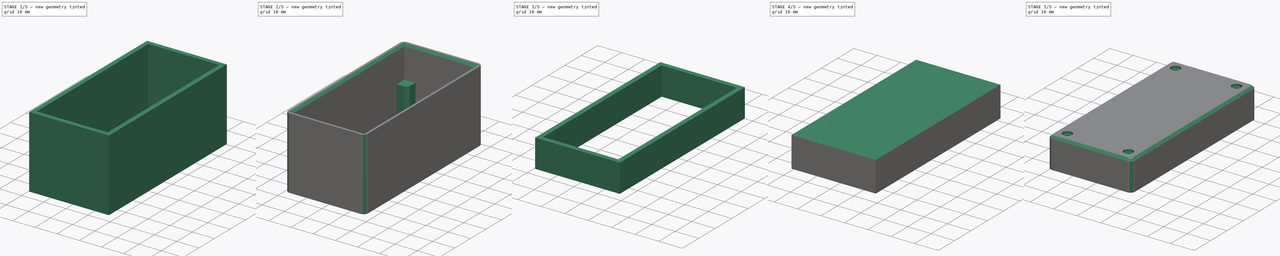
[diagram: build sequence overview — one tinted view per stage of 5, left to right]
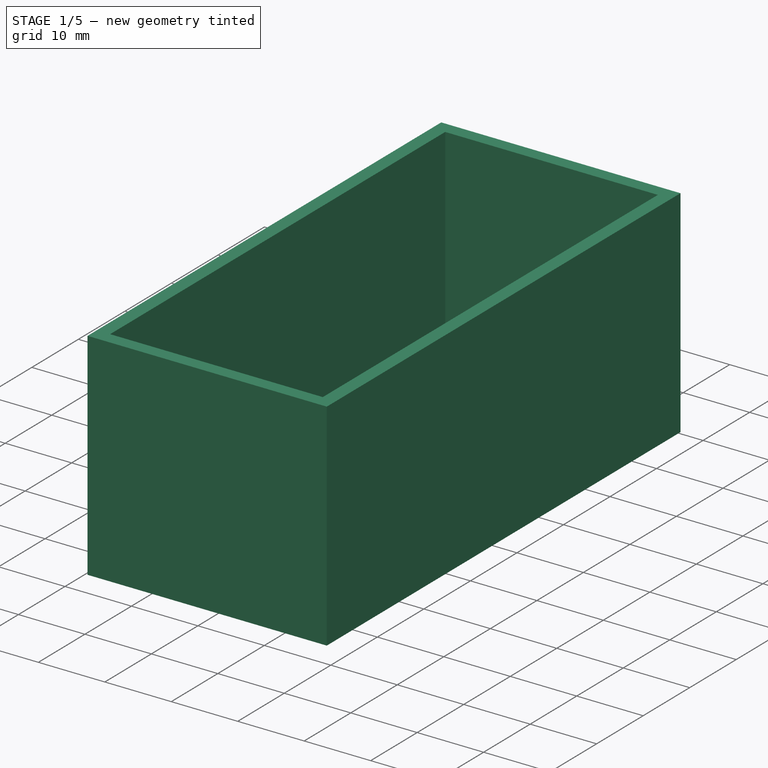
[diagram: stage 1 of 5 — iso view after this stage's code; geometry added in this stage tinted green]
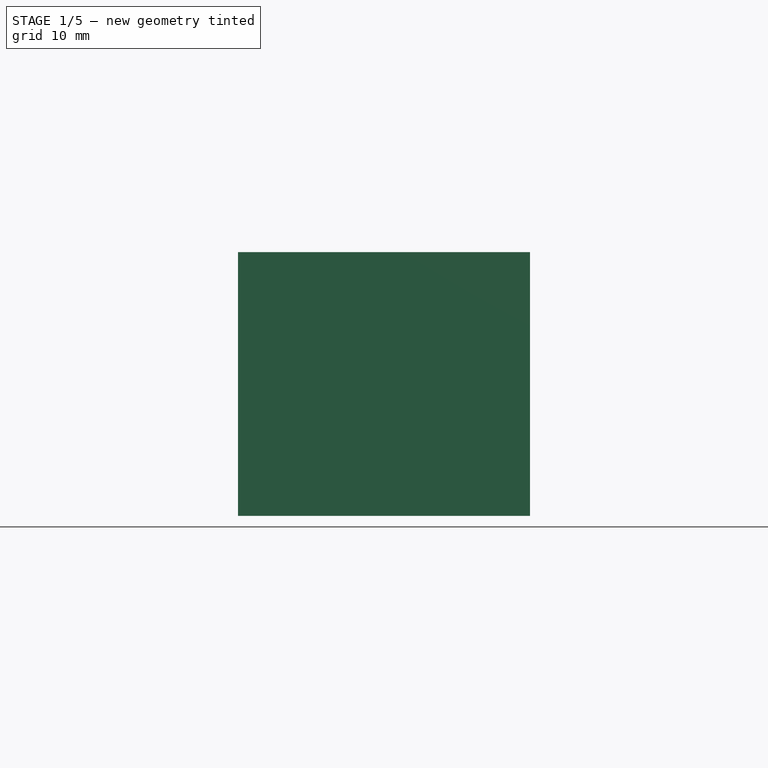
[diagram: stage 1 of 5 — front view after this stage's code; geometry added in this stage tinted green]
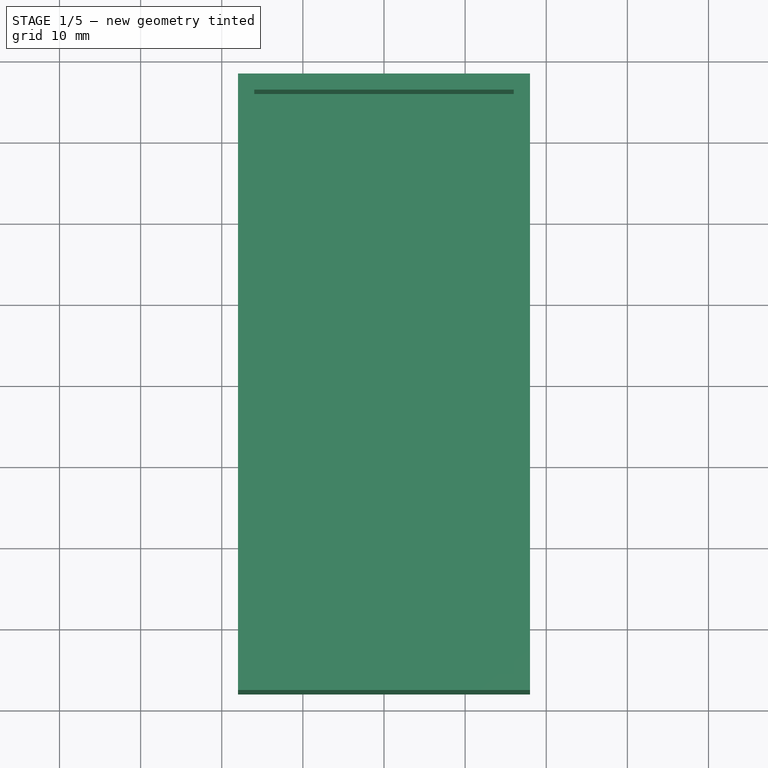
[diagram: stage 1 of 5 — top view after this stage's code; geometry added in this stage tinted green]
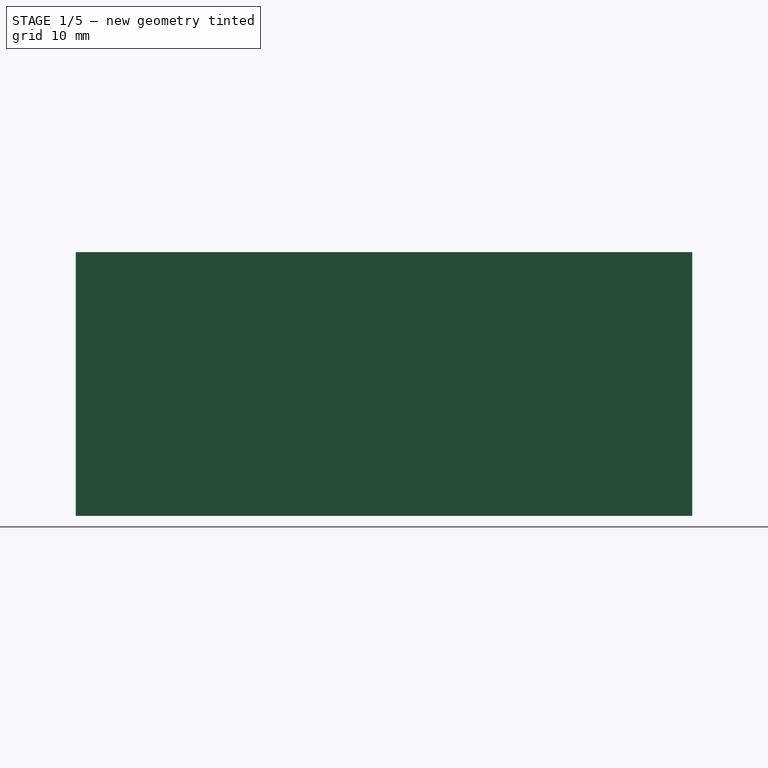
[diagram: stage 1 of 5 — right view after this stage's code; geometry added in this stage tinted green]
FCSTD DOCUMENT  (FreeCAD 1.1R44874 (Git))
Label: esphome_sauna_temp_enclosure
License: All rights reserved
LicenseURL: https://en.wikipedia.org/wiki/All_rights_reserved
objects: Sketcher::SketchObject×7, PartDesign::Pad×4, PartDesign::Chamfer×4, PartDesign::Pocket×3, PartDesign::SubShapeBinder×3, App::Point×2, PartDesign::Fillet×2, PartDesign::Hole×2, PartDesign::Body×2, Spreadsheet::Sheet×1, PartDesign::Mirrored×1
note: 66 computed .brp shape members not serialized (recipe doc carries the construction recipe); baked Part::Feature solids carry a one-line shape summary decoded from their .brp

FEATURE [App::Point] Origin001
  Role = Origin
FEATURE [Sketcher::SketchObject] Sketch  label="PBC_Sketch"
  ArcFitTolerance = 1e-06
  AttachmentSupport = -> [Origin]
  ExternalTypes = [0]
  FullyConstrained = true
  MakeInternals = false
  MapMode = 5
  _ExternalGeoVersion = 1
  expr: Constraints[10] = <<config>>.pcb_length
  expr: Constraints[9] = <<config>>.pcb_width
  sketch-geometry (9):
    g0: LineSegment StartX=-15 StartY=-35 StartZ=0 EndX=15 EndY=-35 EndZ=0
    g1: LineSegment StartX=15 StartY=-35 StartZ=0 EndX=15 EndY=35 EndZ=0
    g2: LineSegment StartX=15 StartY=35 StartZ=0 EndX=-15 EndY=35 EndZ=0
    g3: LineSegment StartX=-15 StartY=35 StartZ=0 EndX=-15 EndY=-35 EndZ=0
    g4: GeomPoint [constr] X=0 Y=0 Z=0
    g5: Circle CenterX=-13 CenterY=33 CenterZ=0 NormalX=0 NormalY=0 NormalZ=1 AngleXU=0 Radius=1.25
    g6: Circle CenterX=13 CenterY=33 CenterZ=0 NormalX=0 NormalY=0 NormalZ=1 AngleXU=0 Radius=1.25
    g7: Circle CenterX=13 CenterY=-33 CenterZ=0 NormalX=0 NormalY=0 NormalZ=1 AngleXU=0 Radius=1.25
    g8: Circle CenterX=-13 CenterY=-33 CenterZ=0 NormalX=0 NormalY=0 NormalZ=1 AngleXU=0 Radius=1.25
  constraints (21):
    c: Coincident(g0,g1)
    c: Coincident(g1,g2)
    c: Coincident(g2,g3)
    c: Coincident(g3,g0)
    c: Horizontal(g0)
    c: Horizontal(g2)
    c: Vertical(g1)
    c: Vertical(g3)
    c: Symmetric(g2,g0,g4)
    c: Distance(g1,g3) = 30
    c: Distance(g0,g2) = 70
    c: Coincident(g4,g-1)
    c: Diameter(g5) = 2.5
    c: Equal(g5,g6)
    c: Equal(g5,g8)
    c: Equal(g5,g7)
    c: Symmetric(g5,g6,g-2)
    c: Symmetric(g5,g8,g-1)
    c: Symmetric(g7,g8,g-2)
    c: DistanceX(g5,g6) = 26
    c: DistanceY(g8,g5) = 66
FEATURE [Sketcher::SketchObject] Sketch001
  ArcFitTolerance = 1e-06
  AttachmentSupport = -> [Origin]
  ExternalTypes = [0]
  FullyConstrained = true
  MakeInternals = false
  MapMode = 5
  _ExternalGeoVersion = 1
  expr: Constraints[10] = <<config>>.pcb_length + 2 * (<<config>>.wall_thickness + <<config>>.wall_clearance)
  expr: Constraints[11] = <<config>>.pcb_width + 2 * (<<config>>.wall_thickness + <<config>>.wall_clearance)
  sketch-geometry (5):
    g0: LineSegment StartX=-18 StartY=38 StartZ=0 EndX=-18 EndY=-38 EndZ=0
    g1: LineSegment StartX=-18 StartY=-38 StartZ=0 EndX=18 EndY=-38 EndZ=0
    g2: LineSegment StartX=18 StartY=-38 StartZ=0 EndX=18 EndY=38 EndZ=0
    g3: LineSegment StartX=18 StartY=38 StartZ=0 EndX=-18 EndY=38 EndZ=0
    g4: GeomPoint [constr] X=0 Y=0 Z=0
  constraints (12):
    c: Coincident(g0,g1)
    c: Coincident(g1,g2)
    c: Coincident(g2,g3)
    c: Coincident(g3,g0)
    c: Vertical(g0)
    c: Vertical(g2)
    c: Horizontal(g1)
    c: Horizontal(g3)
    c: Symmetric(g2,g0,g4)
    c: Coincident(g4,g-1)
    c: DistanceY(g0,g0) = 76
    c: DistanceX(g1,g1) = 36
FEATURE [Spreadsheet::Sheet] Spreadsheet  label="config"
  cells = A1='wall; B1(wall_thickness)==2 mm; A2='pcb wall clear; B2(wall_clearance)==1 mm; A4='pcb height; B4(pcb_height)==1.5 mm; A5='esp height; B5(esp_height)==15 mm; A6='power supply height; B6(ps_height)==22 mm; A8='pcd width; B8(pcb_width)==30 mm; A9='pcb length; B9(pcb_length)==70 mm; A11='connector height; B11(connector_height)==12 mm; A13='overlap; B13(overlap)==1 mm
FEATURE [PartDesign::Pad] Pad
  Direction = (0,0,1)
  Length = 18
  Length2 = 14.5
  Profile = -> Sketch001
  ReferenceAxis = -> Sketch001 [N_Axis]
  Refine = true
  Reversed = true
  SideType = 1
  Suppressed = false
  Type = 0
  Type2 = 0
  expr: Length = <<config>>.esp_height + <<config>>.wall_clearance + <<config>>.wall_thickness
  expr: Length2 = <<config>>.pcb_height + <<config>>.connector_height + <<config>>.overlap
FEATURE [Sketcher::SketchObject] Sketch002
  ArcFitTolerance = 1e-06
  AttachmentSupport = -> [Origin]
  ExternalTypes = [0]
  FullyConstrained = true
  MakeInternals = false
  MapMode = 5
  _ExternalGeoVersion = 1
  expr: Constraints[10] = <<config>>.pcb_length + 2 * <<config>>.wall_clearance
  expr: Constraints[11] = <<config>>.pcb_width + 2 * <<config>>.wall_clearance
  sketch-geometry (5):
    g0: LineSegment StartX=-16 StartY=36 StartZ=0 EndX=-16 EndY=-36 EndZ=0
    g1: LineSegment StartX=-16 StartY=-36 StartZ=0 EndX=16 EndY=-36 EndZ=0
    g2: LineSegment StartX=16 StartY=-36 StartZ=0 EndX=16 EndY=36 EndZ=0
    g3: LineSegment StartX=16 StartY=36 StartZ=0 EndX=-16 EndY=36 EndZ=0
    g4: GeomPoint [constr] X=0 Y=0 Z=0
  constraints (12):
    c: Coincident(g0,g1)
    c: Coincident(g1,g2)
    c: Coincident(g2,g3)
    c: Coincident(g3,g0)
    c: Vertical(g0)
    c: Vertical(g2)
    c: Horizontal(g1)
    c: Horizontal(g3)
    c: Symmetric(g2,g0,g4)
    c: Coincident(g4,g-1)
    c: DistanceY(g0,g0) = 72
    c: DistanceX(g1,g1) = 32
FEATURE [PartDesign::Pocket] Pocket
  BaseFeature = -> Pad
  Direction = (0,0,-1)
  Length = 16
  Length2 = 22
  Profile = -> Sketch002
  ReferenceAxis = -> Sketch002 [N_Axis]
  Refine = true
  SideType = 1
  Suppressed = false
  Type = 0
  Type2 = 0
  expr: Length = <<config>>.esp_height + <<config>>.wall_clearance
  expr: Length2 = <<config>>.ps_height
FEATURE [Sketcher::SketchObject] Sketch003
  ArcFitTolerance = 1e-06
  AttachmentSupport = -> [Origin]
  ExternalGeometry = -> [Sketch,Pocket]
  ExternalTypes = [0,0,0,0,0,0]
  FullyConstrained = true
  MakeInternals = false
  MapMode = 5
  _ExternalGeoVersion = 1
  sketch-geometry (12):
    g0: LineSegment StartX=-16 StartY=-36 StartZ=0 EndX=-11 EndY=-36 EndZ=0
    g1: LineSegment StartX=-11 StartY=-36 StartZ=0 EndX=-11 EndY=-33 EndZ=0
    g2: LineSegment StartX=-13 StartY=-31 StartZ=0 EndX=-16 EndY=-31 EndZ=0
    g3: LineSegment StartX=-16 StartY=-31 StartZ=0 EndX=-16 EndY=-36 EndZ=0
    g4: ArcOfCircle CenterX=-13 CenterY=-33 CenterZ=0 NormalX=0 NormalY=0 NormalZ=1 AngleXU=0 Radius=2 StartAngle=-7.7582e-12 EndAngle=1.5708
    g5: GeomPoint [constr] X=-11 Y=-31 Z=0
    g6: LineSegment StartX=16 StartY=-36 StartZ=0 EndX=11 EndY=-36 EndZ=0
    g7: LineSegment StartX=11 StartY=-36 StartZ=0 EndX=11 EndY=-33 EndZ=0
    g8: LineSegment StartX=13 StartY=-31 StartZ=0 EndX=16 EndY=-31 EndZ=0
    g9: LineSegment StartX=16 StartY=-31 StartZ=0 EndX=16 EndY=-36 EndZ=0
    g10: ArcOfCircle CenterX=13 CenterY=-33 CenterZ=0 NormalX=0 NormalY=0 NormalZ=1 AngleXU=0 Radius=2 StartAngle=1.5708 EndAngle=3.14159
    g11: GeomPoint [constr] X=11 Y=-31 Z=0
  constraints (30):
    c: Coincident(g0,g1)
    c: Coincident(g2,g3)
    c: Coincident(g3,g0)
    c: Horizontal(g0)
    c: Horizontal(g2)
    c: Vertical(g1)
    c: Vertical(g3)
    c: Coincident(g0,g-5)
    c: DistanceX(g-4,g5) = 4
    c: PointOnObject(g5,g2)
    c: PointOnObject(g5,g1)
    c: Tangent(g2,g4) = -1.5708
    c: Tangent(g1,g4) = -1.5708
    c: Radius(g4) = 2
    c: Equal(g2,g1)
    c: Coincident(g6,g7)
    c: Coincident(g8,g9)
    c: Coincident(g9,g6)
    c: Horizontal(g6)
    c: Horizontal(g8)
    c: Vertical(g7)
    c: Vertical(g9)
    c: PointOnObject(g11,g8)
    c: PointOnObject(g11,g7)
    c: Tangent(g8,g10) = 1.5708
    c: Tangent(g7,g10) = 1.5708
    c: Radius(g10) = 2
    c: Equal(g8,g7)
    c: Equal(g7,g1)
    c: Coincident(g6,g-10)
FEATURE [PartDesign::Pad] Pad001
  BaseFeature = -> Pocket
  Direction = (0,0,1)
  Length = 10
  Length2 = 10
  Profile = -> Sketch003
  ReferenceAxis = -> Sketch003 [N_Axis]
  Refine = true
  Reversed = true
  SideType = 0
  Suppressed = false
  Type = 2
  Type2 = 0
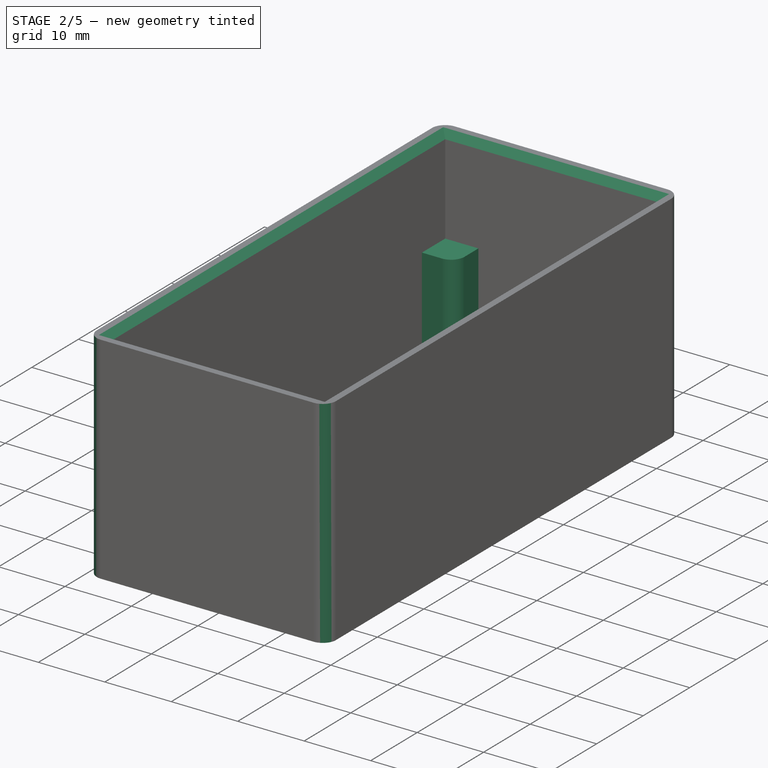
[diagram: stage 2 of 5 — iso view after this stage's code; geometry added in this stage tinted green]
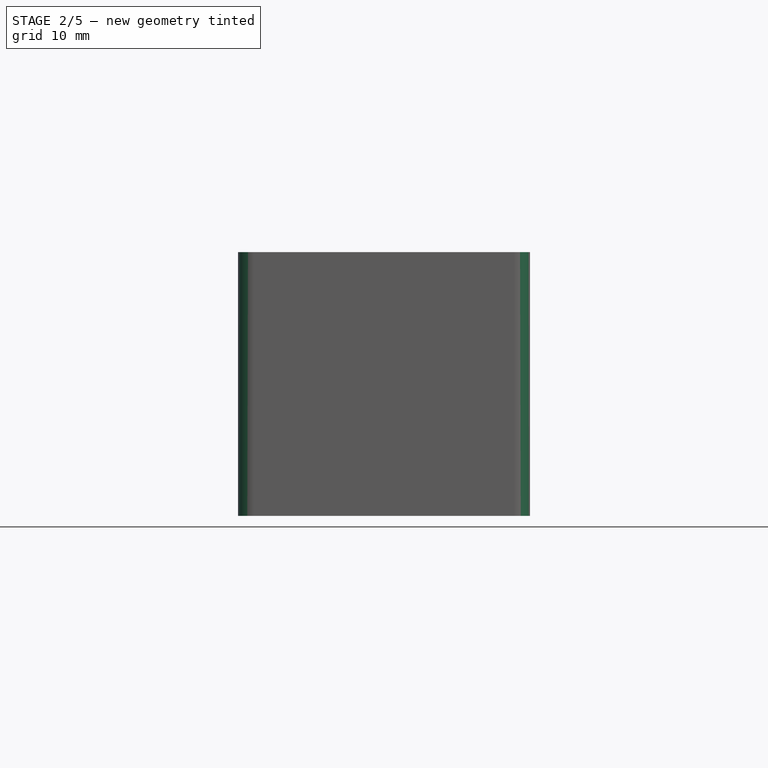
[diagram: stage 2 of 5 — front view after this stage's code; geometry added in this stage tinted green]
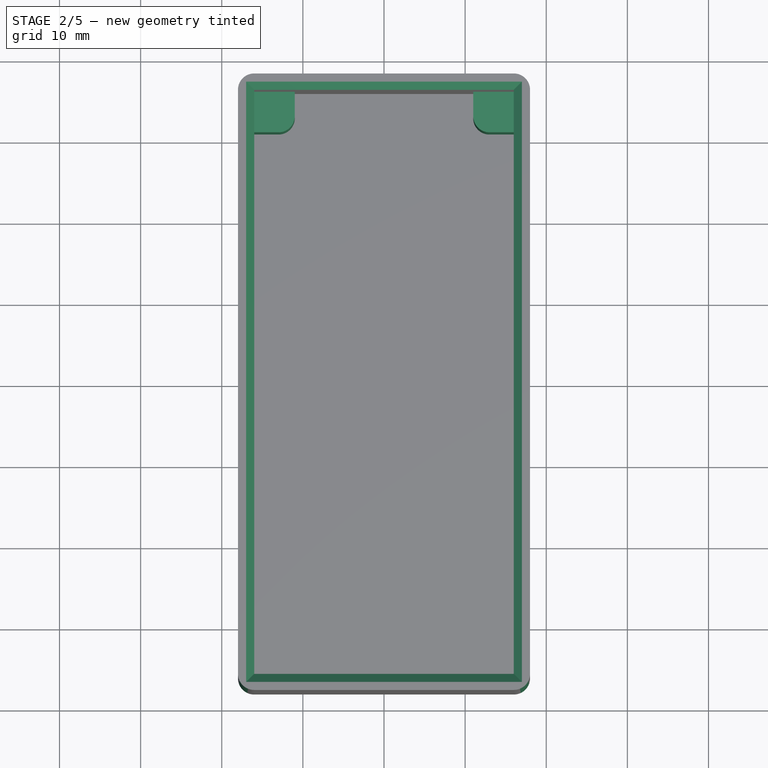
[diagram: stage 2 of 5 — top view after this stage's code; geometry added in this stage tinted green]
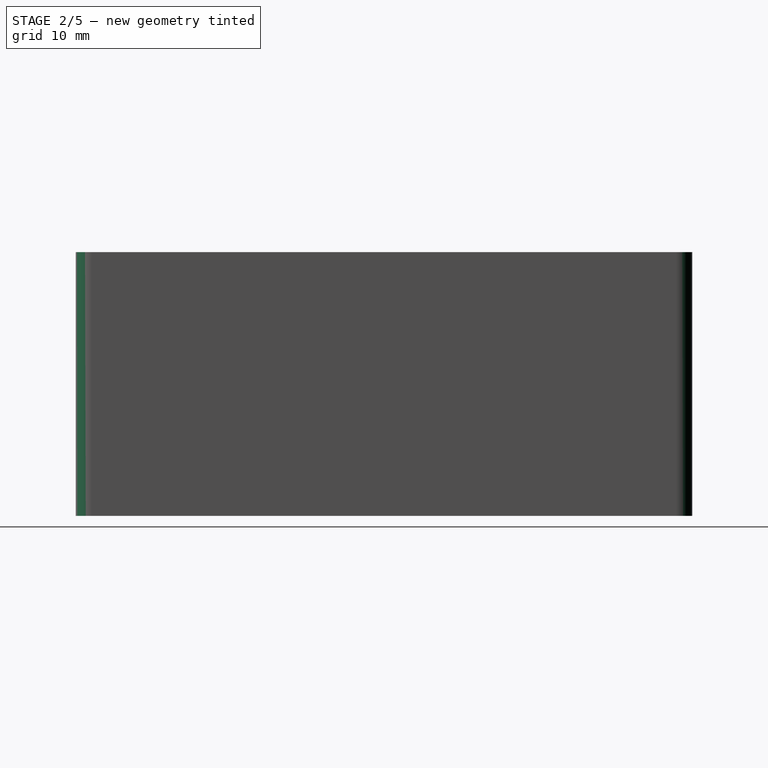
[diagram: stage 2 of 5 — right view after this stage's code; geometry added in this stage tinted green]
FEATURE [PartDesign::Mirrored] Mirrored
  BaseFeature = -> Pad001
  MirrorPlane = -> Sketch003 [H_Axis]
  Originals = -> [Pad001]
  Refine = true
  Suppressed = false
  TransformMode = 0
FEATURE [Sketcher::SketchObject] Sketch004
  ArcFitTolerance = 1e-06
  AttachmentSupport = -> [Origin]
  ExternalGeometry = -> [Sketch]
  ExternalTypes = [0]
  FullyConstrained = true
  MakeInternals = false
  MapMode = 5
  _ExternalGeoVersion = 1
  sketch-geometry (10):
    g0: LineSegment StartX=-12 StartY=30 StartZ=0 EndX=12 EndY=30 EndZ=0
    g1: LineSegment StartX=12 StartY=30 StartZ=0 EndX=12 EndY=80 EndZ=0
    g2: LineSegment StartX=12 StartY=80 StartZ=0 EndX=-12 EndY=80 EndZ=0
    g3: LineSegment StartX=-12 StartY=80 StartZ=0 EndX=-12 EndY=30 EndZ=0
    g4: GeomPoint [constr] X=0 Y=55 Z=0
    g5: LineSegment StartX=-7 StartY=-80 StartZ=0 EndX=7 EndY=-80 EndZ=0
    g6: LineSegment StartX=7 StartY=-80 StartZ=0 EndX=7 EndY=-30 EndZ=0
    g7: LineSegment StartX=7 StartY=-30 StartZ=0 EndX=-7 EndY=-30 EndZ=0
    g8: LineSegment StartX=-7 StartY=-30 StartZ=0 EndX=-7 EndY=-80 EndZ=0
    g9: GeomPoint [constr] X=0 Y=-55 Z=0
  constraints (26):
    c: Coincident(g0,g1)
    c: Coincident(g1,g2)
    c: Coincident(g2,g3)
    c: Coincident(g3,g0)
    c: Horizontal(g0)
    c: Horizontal(g2)
    c: Vertical(g1)
    c: Vertical(g3)
    c: Symmetric(g2,g0,g4)
    c: PointOnObject(g4,g-2)
    c: Coincident(g5,g6)
    c: Coincident(g6,g7)
    c: Coincident(g7,g8)
    c: Coincident(g8,g5)
    c: Horizontal(g5)
    c: Horizontal(g7)
    c: Vertical(g6)
    c: Vertical(g8)
    c: Symmetric(g7,g5,g9)
    c: PointOnObject(g9,g-2)
    c: DistanceX(g-3,g0) = 3
    c: DistanceX(g-3,g7) = 8
    c: DistanceY(g1,g1) = 50
    c: DistanceY(g6,g6) = 50
    c: DistanceY(g0,g-3) = 5
    c: DistanceY(g-3,g7) = 5
FEATURE [PartDesign::Chamfer] Chamfer
  Angle = 45
  Base = -> Mirrored [Edge16,Edge15,Edge14,Edge13]
  BaseFeature = -> Mirrored
  ChamferType = 0
  FlipDirection = false
  Refine = true
  Size = 1
  Size2 = 1
  SupportTransform = false
  Suppressed = false
  UseAllEdges = false
  expr: Size = <<config>>.overlap
FEATURE [PartDesign::Fillet] Fillet
  Base = -> Chamfer [Edge22,Edge20,Edge17,Edge18]
  BaseFeature = -> Chamfer
  Radius = 2
  Refine = true
  SupportTransform = false
  Suppressed = false
  UseAllEdges = false
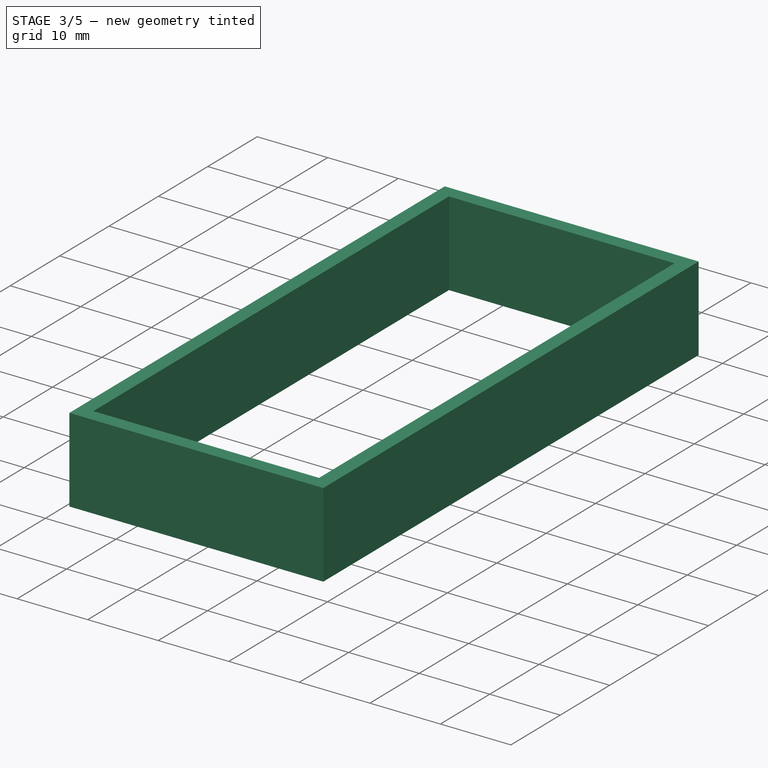
[diagram: stage 3 of 5 — iso view after this stage's code; geometry added in this stage tinted green]
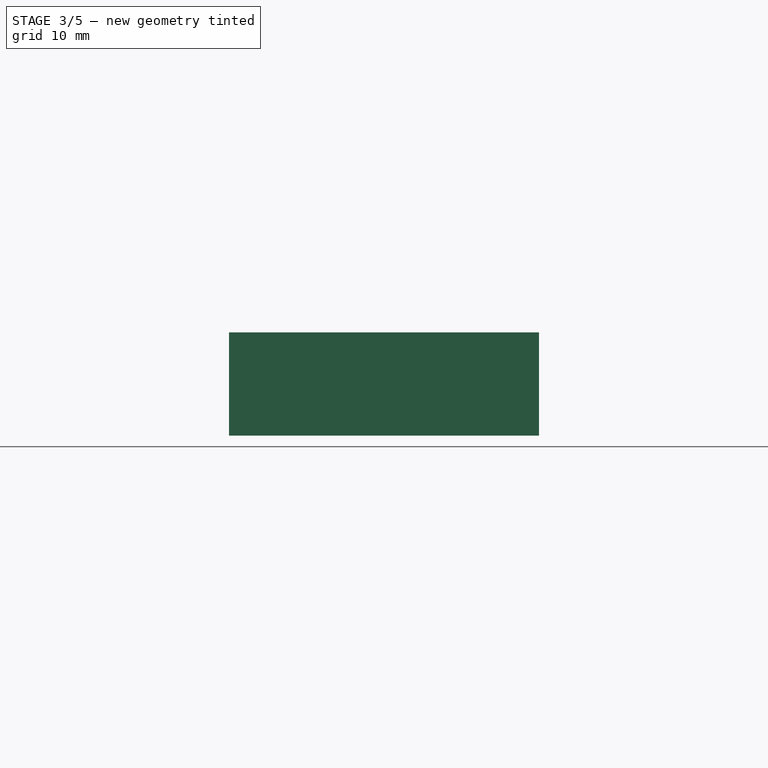
[diagram: stage 3 of 5 — front view after this stage's code; geometry added in this stage tinted green]
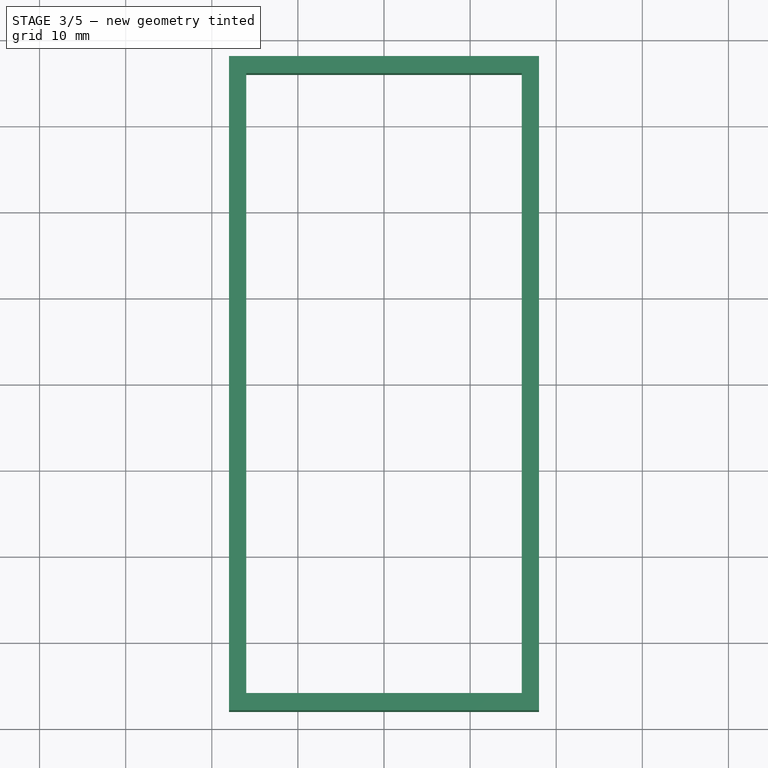
[diagram: stage 3 of 5 — top view after this stage's code; geometry added in this stage tinted green]
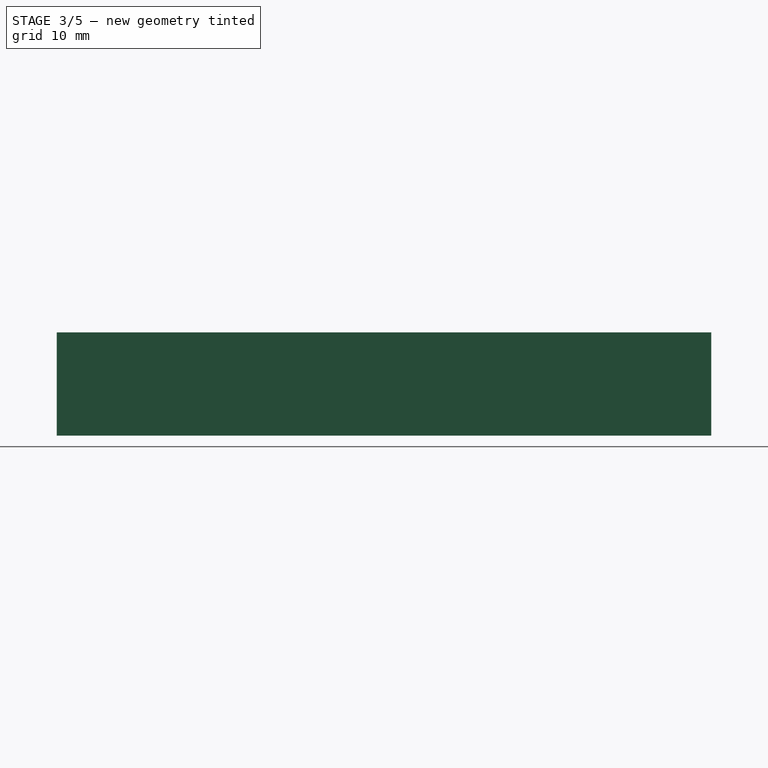
[diagram: stage 3 of 5 — right view after this stage's code; geometry added in this stage tinted green]
FEATURE [PartDesign::Chamfer] Chamfer001
  Angle = 45
  Base = -> Fillet [Face14]
  BaseFeature = -> Fillet
  ChamferType = 0
  FlipDirection = false
  Refine = true
  Size = 1
  Size2 = 1
  SupportTransform = false
  Suppressed = false
  UseAllEdges = false
FEATURE [PartDesign::Pocket] Pocket001
  BaseFeature = -> Chamfer001
  Direction = (0,0,-1)
  Length = 5
  Length2 = 5
  Profile = -> Sketch004
  ReferenceAxis = -> Sketch004 [N_Axis]
  Refine = true
  Reversed = true
  SideType = 0
  Suppressed = false
  Type = 1
  Type2 = 0
FEATURE [PartDesign::Hole] Hole
  BaseFeature = -> Pocket001
  BaseProfileType = 7
  CustomThreadClearance = 0
  Depth = 7.5
  DepthType = 0
  Diameter = 2.05
  DrillForDepth = false
  DrillPoint = 0
  DrillPointAngle = 118
  HoleCutCountersinkAngle = 90
  HoleCutCustomValues = false
  HoleCutDepth = 0
  HoleCutDiameter = 0
  HoleCutType = 0
  ModelThread = true
  Profile = -> Sketch
  Refine = true
  Suppressed = false
  Tapered = false
  TaperedAngle = 90
  ThreadClass = 1
  ThreadDepth = 7.5
  ThreadDepthType = 0
  ThreadDiameter = 2.5
  ThreadDirection = 0
  ThreadFit = 0
  ThreadSize = 8
  ThreadType = 1
  Threaded = true
  UseCustomThreadClearance = false
  expr: Depth = <<config>>.esp_height / 2
FEATURE [PartDesign::Body] Body  label="ESPBody"
  AllowCompound = true
  Group = -> [Sketch,Sketch001,Pad,Sketch002,Pocket,Sketch003,Pad001,Mirrored,Sketch004,Chamfer,Fillet,Chamfer001,Pocket001,Hole]
  Origin = -> Origin
  Tip = -> Hole
FEATURE [App::Point] Origin003
  Role = Origin
FEATURE [PartDesign::SubShapeBinder] Binder
  BindCopyOnChange = 0
  BindMode = 0
  ClaimChildren = false
  Context = -> Body001 [Binder.]
  Fuse = false
  MakeFace = true
  OffsetFill = false
  OffsetIntersection = false
  OffsetJoinType = 0
  OffsetOpenResult = false
  PartialLoad = false
  Refine = true
  Relative = true
  Support = -> [Body[Sketch.]]
  _Version = 2
FEATURE [PartDesign::SubShapeBinder] Binder001
  BindCopyOnChange = 0
  BindMode = 0
  ClaimChildren = false
  Context = -> Body001 [Binder001.]
  Fuse = false
  MakeFace = true
  OffsetFill = false
  OffsetIntersection = false
  OffsetJoinType = 0
  OffsetOpenResult = false
  PartialLoad = false
  Refine = true
  Relative = true
  Support = -> [Body[Sketch004.]]
  _Version = 2
FEATURE [PartDesign::SubShapeBinder] Binder002
  BindCopyOnChange = 0
  BindMode = 0
  ClaimChildren = false
  Context = -> Body001 [Binder002.]
  Fuse = false
  MakeFace = true
  OffsetFill = false
  OffsetIntersection = false
  OffsetJoinType = 0
  OffsetOpenResult = false
  PartialLoad = false
  Refine = true
  Relative = true
  Support = -> [Body[Mirrored.Face5]]
  _Version = 2
FEATURE [PartDesign::Pad] Pad002
  Direction = (0,0,1)
  Length = 11
  Length2 = 1
  Profile = -> Binder002 [Face1]
  Refine = true
  SideType = 1
  Suppressed = false
  Type = 0
  Type2 = 0
  expr: Length = <<config>>.ps_height + <<config>>.wall_clearance - <<config>>.connector_height
  expr: Length2 = <<config>>.overlap
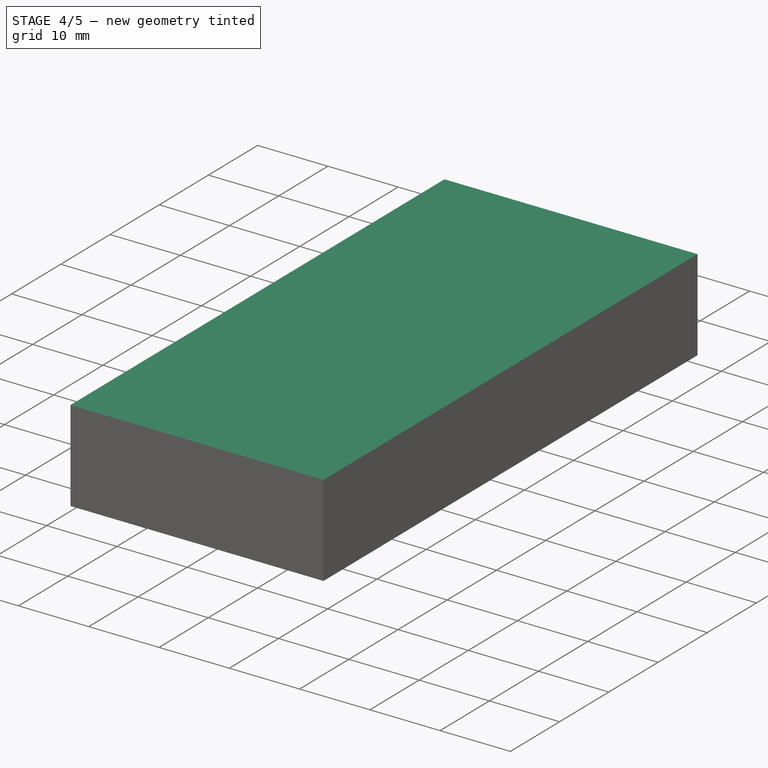
[diagram: stage 4 of 5 — iso view after this stage's code; geometry added in this stage tinted green]
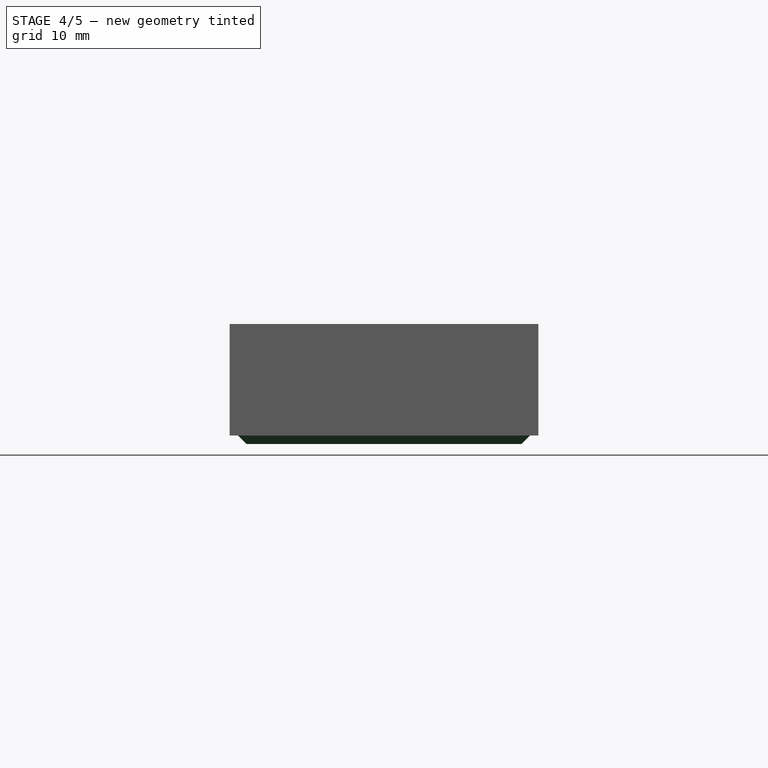
[diagram: stage 4 of 5 — front view after this stage's code; geometry added in this stage tinted green]
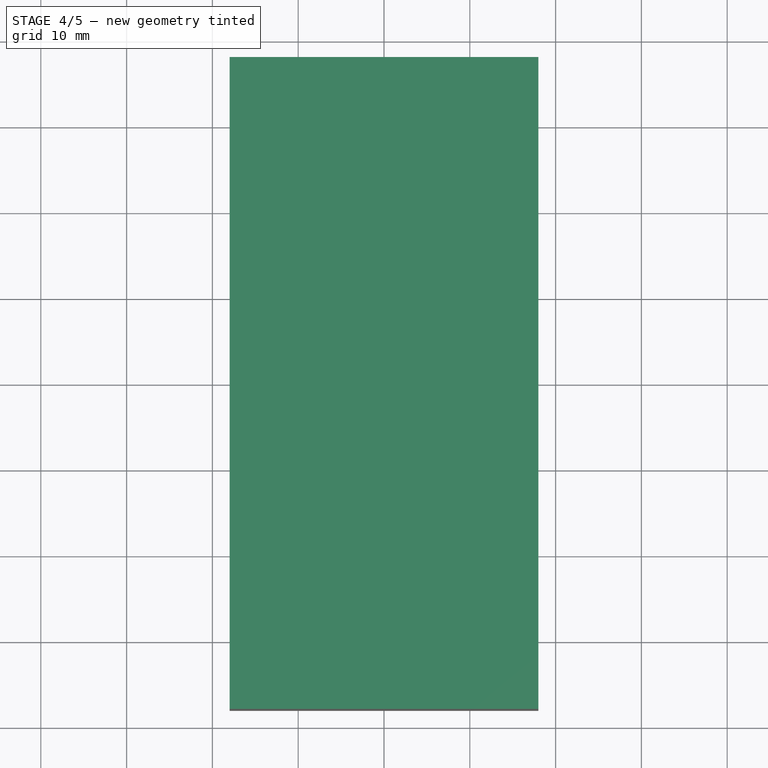
[diagram: stage 4 of 5 — top view after this stage's code; geometry added in this stage tinted green]
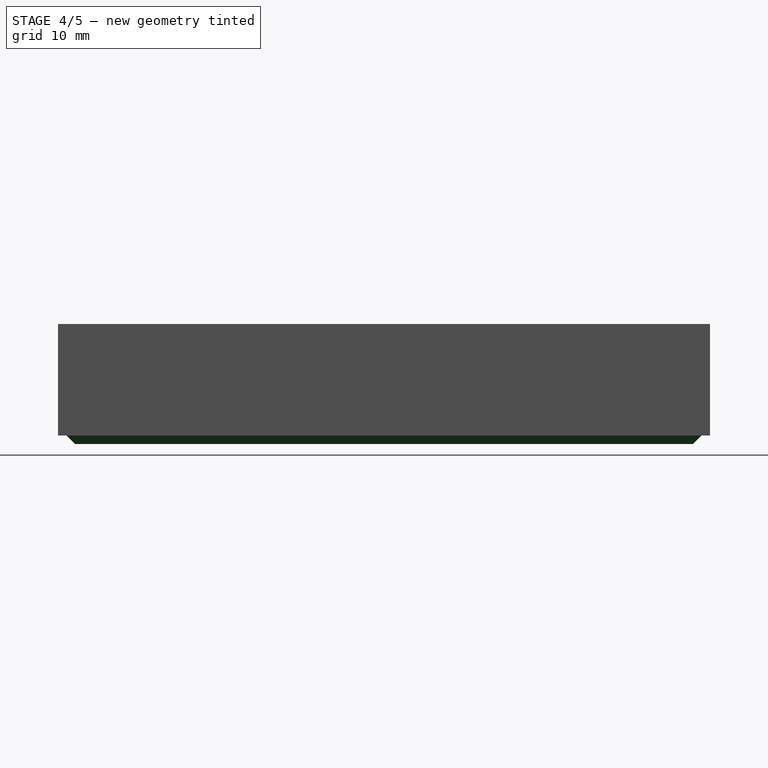
[diagram: stage 4 of 5 — right view after this stage's code; geometry added in this stage tinted green]
FEATURE [Sketcher::SketchObject] Sketch005
  ArcFitTolerance = 1e-06
  AttachmentSupport = -> [Pad002]
  ExternalGeometry = -> [Pad002]
  ExternalTypes = [0]
  FullyConstrained = true
  MakeInternals = false
  MapMode = 5
  Placement = pos=(0,0,13.5) rot=(1,0,0;3.14159rad)
  _ExternalGeoVersion = 1
  expr: Constraints[21] = <<config>>.overlap
  expr: Constraints[22] = <<config>>.overlap
  sketch-geometry (10):
    g0: LineSegment StartX=18 StartY=-38 StartZ=0 EndX=18 EndY=38 EndZ=0
    g1: LineSegment StartX=18 StartY=38 StartZ=0 EndX=-18 EndY=38 EndZ=0
    g2: LineSegment StartX=-18 StartY=38 StartZ=0 EndX=-18 EndY=-38 EndZ=0
    g3: LineSegment StartX=-18 StartY=-38 StartZ=0 EndX=18 EndY=-38 EndZ=0
    g4: GeomPoint [constr] X=0 Y=0 Z=0
    g5: LineSegment StartX=17 StartY=-37 StartZ=0 EndX=17 EndY=37 EndZ=0
    g6: LineSegment StartX=17 StartY=37 StartZ=0 EndX=-17 EndY=37 EndZ=0
    g7: LineSegment StartX=-17 StartY=37 StartZ=0 EndX=-17 EndY=-37 EndZ=0
    g8: LineSegment StartX=-17 StartY=-37 StartZ=0 EndX=17 EndY=-37 EndZ=0
    g9: GeomPoint [constr] X=0 Y=0 Z=0
  constraints (23):
    c: Coincident(g0,g1)
    c: Coincident(g1,g2)
    c: Coincident(g2,g3)
    c: Coincident(g3,g0)
    c: Vertical(g0)
    c: Vertical(g2)
    c: Horizontal(g1)
    c: Horizontal(g3)
    c: Symmetric(g2,g0,g4)
    c: Coincident(g4,g-1)
    c: Coincident(g1,g-3)
    c: Coincident(g5,g6)
    c: Coincident(g6,g7)
    c: Coincident(g7,g8)
    c: Coincident(g8,g5)
    c: Vertical(g5)
    c: Vertical(g7)
    c: Horizontal(g6)
    c: Horizontal(g8)
    c: Symmetric(g7,g5,g9)
    c: Coincident(g9,g4)
    c: DistanceY(g6,g1) = 1
    c: DistanceX(g1,g6) = 1
FEATURE [PartDesign::Pocket] Pocket002
  BaseFeature = -> Pad002
  Direction = (0,0,1)
  Length = 1
  Length2 = 5
  Profile = -> Sketch005
  ReferenceAxis = -> Sketch005 [N_Axis]
  Refine = true
  SideType = 0
  Suppressed = false
  Type = 0
  Type2 = 0
  expr: Length = <<config>>.overlap
FEATURE [PartDesign::Chamfer] Chamfer002
  Angle = 45
  Base = -> Pocket002 [Edge36,Edge31,Edge33,Edge35]
  BaseFeature = -> Pocket002
  ChamferType = 0
  FlipDirection = false
  Refine = true
  Size = 0.99
  Size2 = 1
  SupportTransform = false
  Suppressed = false
  UseAllEdges = false
  expr: Size = <<config>>.overlap * 0.99
FEATURE [PartDesign::Pad] Pad003
  BaseFeature = -> Chamfer002
  Direction = (0,0,1)
  Length = 2
  Length2 = 10
  Profile = -> Chamfer002 [Edge32,Edge29,Edge34,Edge36]
  Refine = true
  SideType = 0
  Suppressed = false
  Type = 0
  Type2 = 0
  expr: Length = <<config>>.wall_thickness
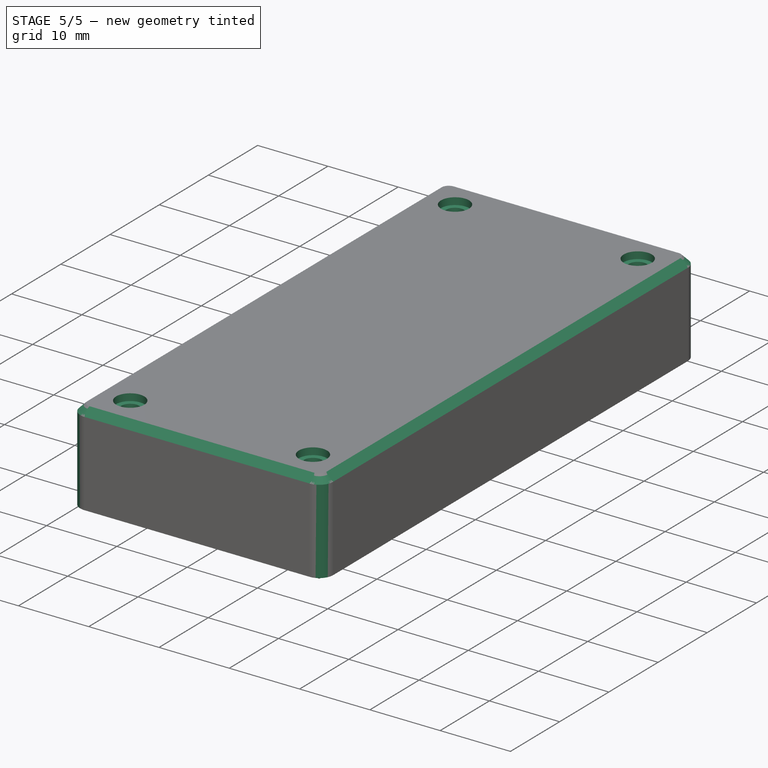
[diagram: stage 5 of 5 — iso view after this stage's code; geometry added in this stage tinted green]
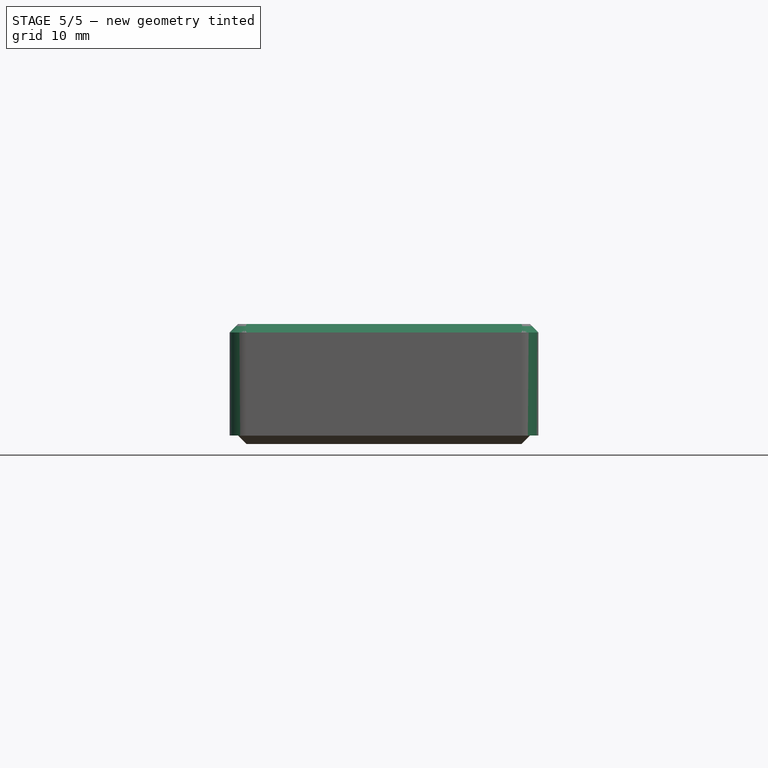
[diagram: stage 5 of 5 — front view after this stage's code; geometry added in this stage tinted green]
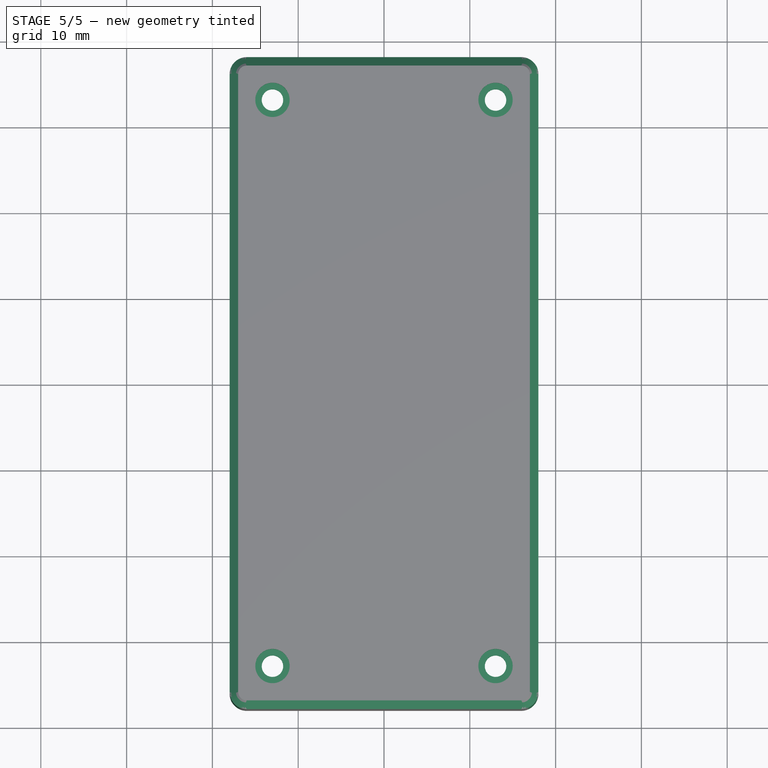
[diagram: stage 5 of 5 — top view after this stage's code; geometry added in this stage tinted green]
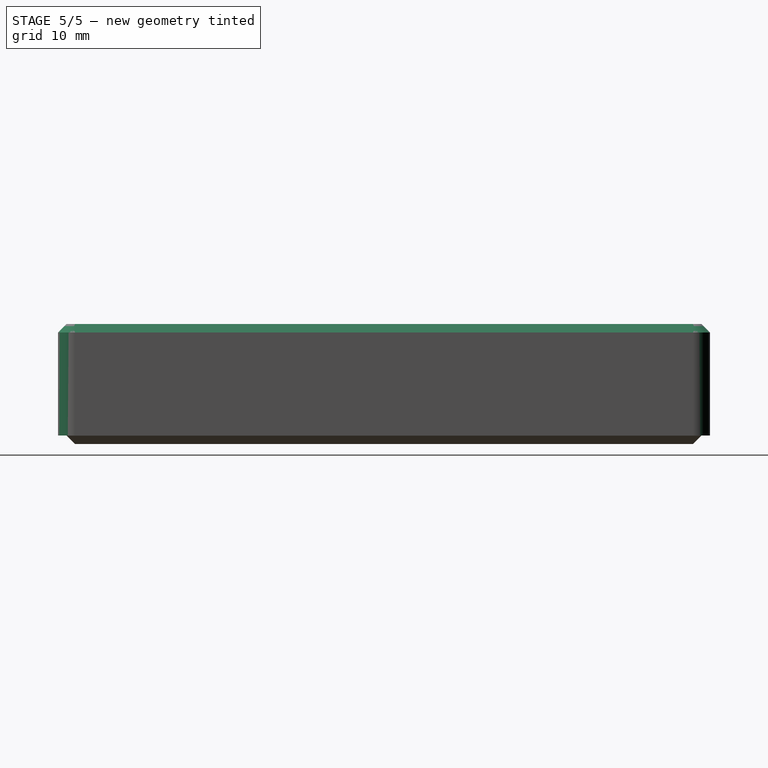
[diagram: stage 5 of 5 — right view after this stage's code; geometry added in this stage tinted green]
FEATURE [PartDesign::Fillet] Fillet001
  Base = -> Pad003 [Edge6,Edge43,Edge5,Edge44]
  BaseFeature = -> Pad003
  Radius = 2
  Refine = true
  SupportTransform = false
  Suppressed = false
  UseAllEdges = false
FEATURE [PartDesign::Chamfer] Chamfer003
  Angle = 45
  Base = -> Fillet001 [Face1]
  BaseFeature = -> Fillet001
  ChamferType = 0
  FlipDirection = false
  Refine = true
  Size = 1
  Size2 = 1
  SupportTransform = false
  Suppressed = false
  UseAllEdges = false
FEATURE [Sketcher::SketchObject] Sketch006
  ArcFitTolerance = 1e-06
  AttachmentSupport = -> [Chamfer003]
  ExternalGeometry = -> [Binder]
  ExternalTypes = [0,0,0,0]
  FullyConstrained = true
  MakeInternals = false
  MapMode = 5
  Placement = pos=(0,0,27.5) rot=(0,0,1;0rad)
  _ExternalGeoVersion = 1
FEATURE [PartDesign::Hole] Hole001
  BaseFeature = -> Chamfer003
  BaseProfileType = 7
  CustomThreadClearance = 0
  Depth = 25
  DepthType = 0
  Diameter = 2.5
  DrillForDepth = false
  DrillPoint = 1
  DrillPointAngle = 118
  HoleCutCountersinkAngle = 90
  HoleCutCustomValues = false
  HoleCutDepth = 1
  HoleCutDiameter = 4
  HoleCutType = 1
  ModelThread = false
  Profile = -> Sketch006
  Refine = true
  Suppressed = false
  Tapered = false
  TaperedAngle = 90
  ThreadClass = 0
  ThreadDepth = 25
  ThreadDepthType = 0
  ThreadDiameter = 2.5
  ThreadDirection = 0
  ThreadFit = 0
  ThreadSize = 0
  ThreadType = 0
  Threaded = false
  UseCustomThreadClearance = false
FEATURE [PartDesign::Body] Body001  label="PowerSupplyBody"
  AllowCompound = true
  Group = -> [Binder,Binder001,Binder002,Pad002,Sketch005,Pocket002,Chamfer002,Pad003,Fillet001,Chamfer003,Sketch006,Hole001]
  Origin = -> Origin002
  Tip = -> Hole001
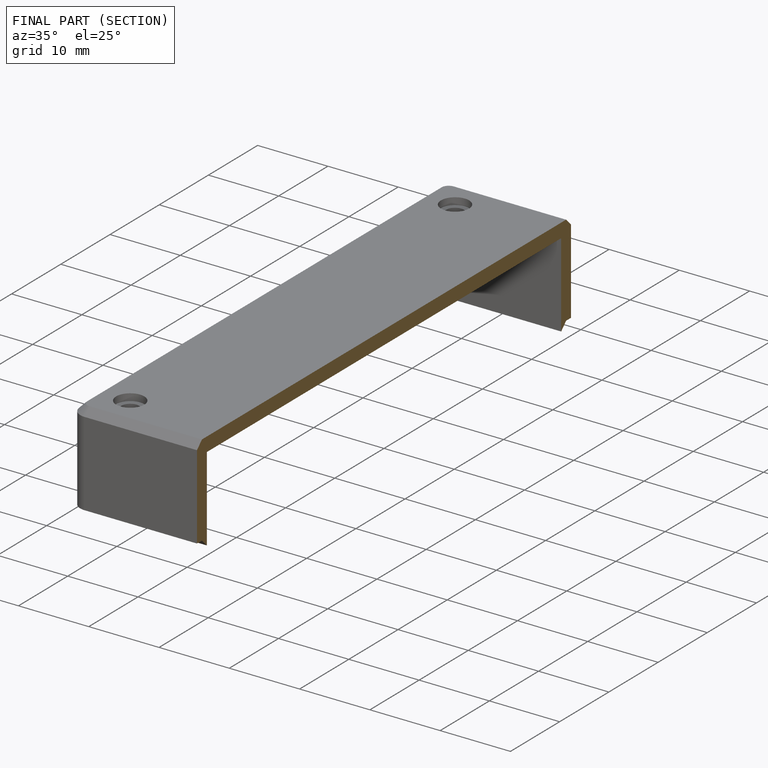
[diagram: finished part — half-section view (interior)]
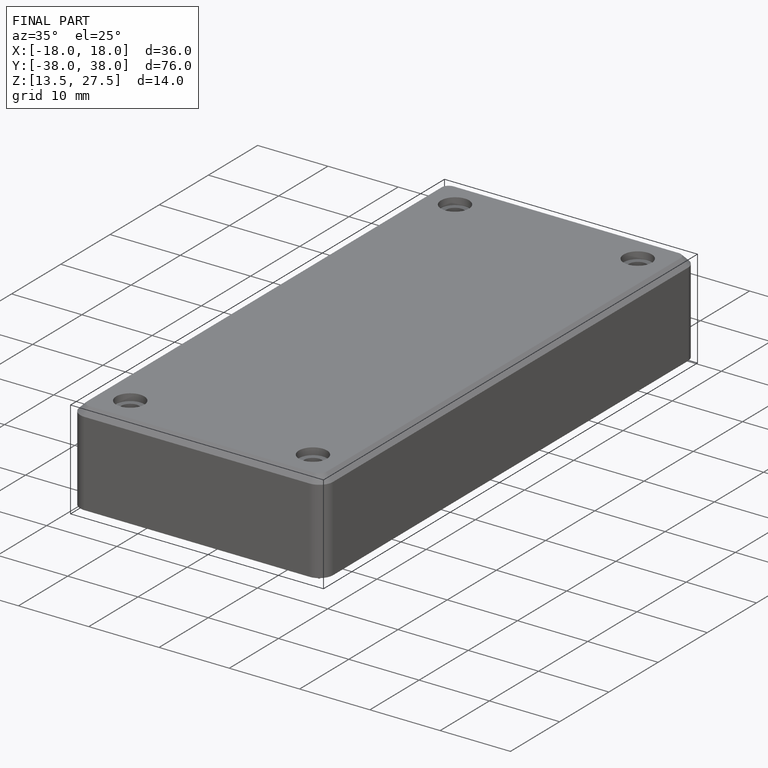
[diagram: finished part — iso view with bounding-box wireframe]
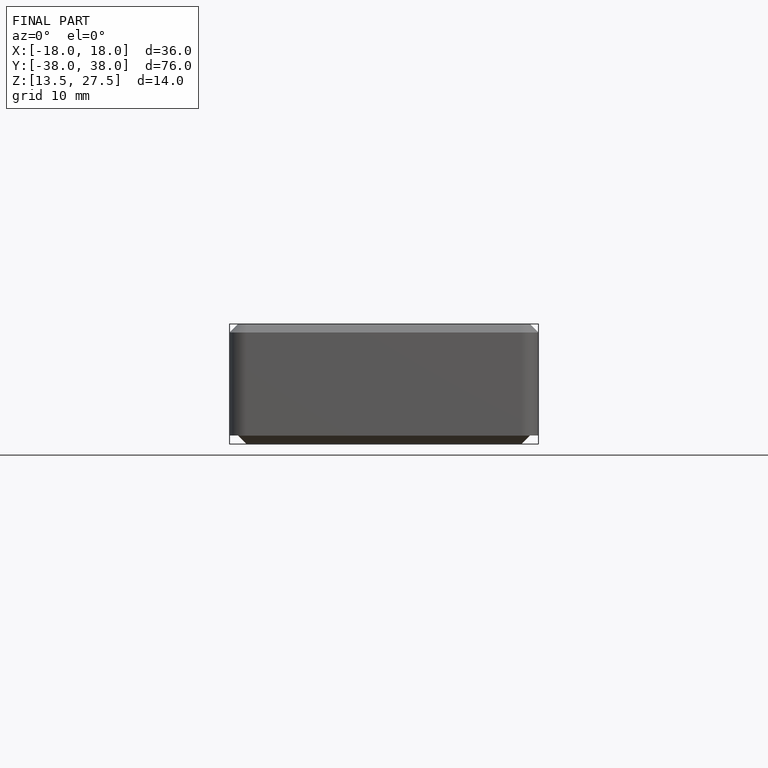
[diagram: finished part — front view with bounding-box wireframe]
